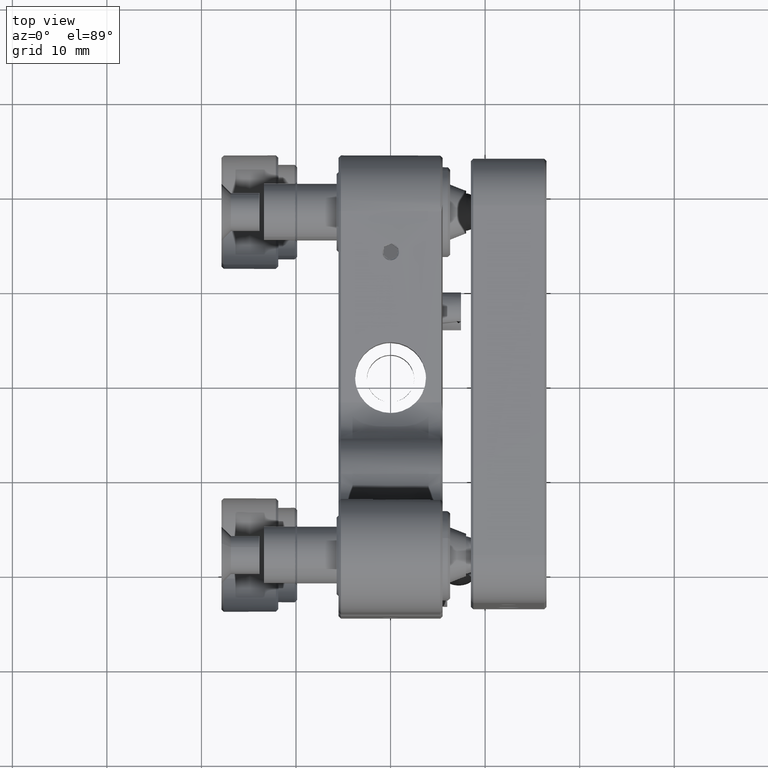
[diagram: clean part render]
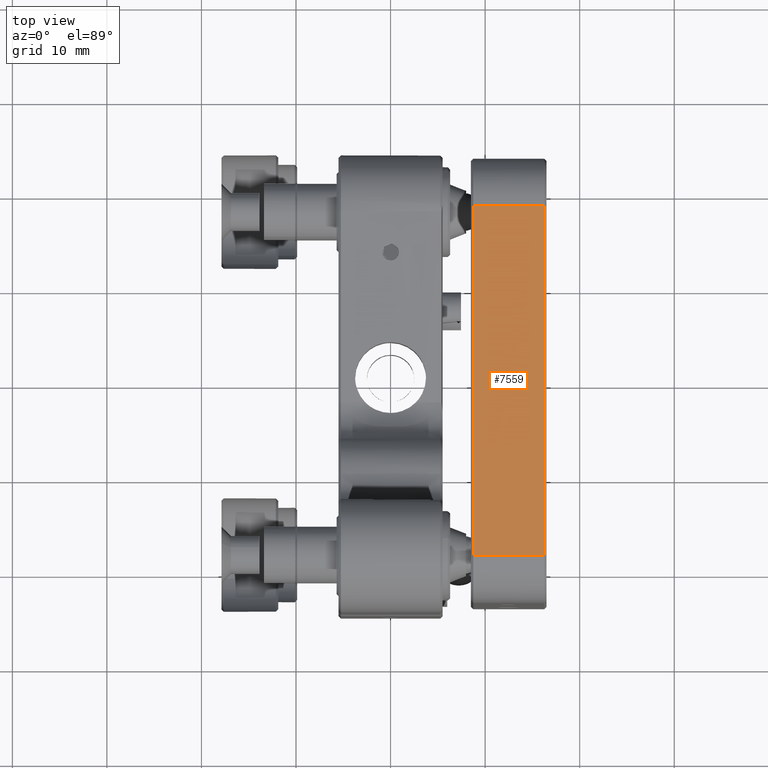
[diagram: same view with one face highlighted and labeled with its STEP entity id]
A machine part, top view. The second image highlights one B-rep face of the part: STEP entity #7559.
In plain terms, the highlighted face is a freeform B-spline surface patch.
Its self-contained STEP definition (entity closure, byte-faithful):
#558 = B_SPLINE_SURFACE_WITH_KNOTS ( 'NONE', 1, 1, ( 
 ( #37269, #47133 ),
 ( #13074, #60808 ) ),
 .UNSPECIFIED., .F., .F., .F.,
 ( 2, 2 ),
 ( 2, 2 ),
 ( -0.5011999999999889877, 8.501200000000160628 ),
 ( -45.70120000000000005, -1.298799999999978194 ),
 .UNSPECIFIED. ) ;
#1504 = EDGE_CURVE ( 'NONE', #47078, #16405, #48716, .T. ) ;
#2703 = ORIENTED_EDGE ( 'NONE', *, *, #1504, .F. ) ;
#5490 = CARTESIAN_POINT ( 'NONE',  ( 16.24606781186519910, -18.50000000000000000, 23.50000000000000000 ) ) ;
#6902 = CARTESIAN_POINT ( 'NONE',  ( 8.746067811865161801, 18.50000000000000000, 23.50000000000000000 ) ) ;
#6969 = EDGE_CURVE ( 'NONE', #16405, #35410, #58395, .T. ) ;
#7559 = ADVANCED_FACE ( 'NONE', ( #36961 ), #558, .T. ) ;
#8898 = EDGE_CURVE ( 'NONE', #58596, #47078, #26384, .T. ) ;
#13074 = CARTESIAN_POINT ( 'NONE',  ( 16.99726781186519986, -22.20120000000000005, 23.50000000000000000 ) ) ;
#15541 = ORIENTED_EDGE ( 'NONE', *, *, #8898, .F. ) ;
#16171 = CARTESIAN_POINT ( 'NONE',  ( 16.24606781186519910, 18.50000000000000000, 23.50000000000000000 ) ) ;
#16405 = VERTEX_POINT ( 'NONE', #51297 ) ;
#18902 = CARTESIAN_POINT ( 'NONE',  ( 16.24606781186519910, -18.50000000000000000, 23.50000000000000000 ) ) ;
#20286 = ORIENTED_EDGE ( 'NONE', *, *, #30306, .F. ) ;
#26384 = B_SPLINE_CURVE_WITH_KNOTS ( 'NONE', 1,
 ( #41250, #6902 ),
 .UNSPECIFIED., .F., .F.,
 ( 2, 2 ),
 ( 0.000000000000000000, 1.000000000000000000 ),
 .UNSPECIFIED. ) ;
#27052 = EDGE_LOOP ( 'NONE', ( #20286, #27258, #2703, #15541 ) ) ;
#27258 = ORIENTED_EDGE ( 'NONE', *, *, #6969, .F. ) ;
#29778 = CARTESIAN_POINT ( 'NONE',  ( 8.746067811865161801, 18.50000000000000000, 23.50000000000000000 ) ) ;
#30306 = EDGE_CURVE ( 'NONE', #35410, #58596, #54811, .T. ) ;
#31966 = CARTESIAN_POINT ( 'NONE',  ( 8.746067811865261277, -18.50000000000000000, 23.50000000000000000 ) ) ;
#33543 = CARTESIAN_POINT ( 'NONE',  ( 8.746067811865261277, -18.50000000000000000, 23.50000000000000000 ) ) ;
#35410 = VERTEX_POINT ( 'NONE', #41236 ) ;
#36961 = FACE_OUTER_BOUND ( 'NONE', #27052, .T. ) ;
#37269 = CARTESIAN_POINT ( 'NONE',  ( 7.994867811865050022, -22.20120000000000005, 23.50000000000000000 ) ) ;
#41236 = CARTESIAN_POINT ( 'NONE',  ( 16.24606781186519910, -18.50000000000000000, 23.50000000000000000 ) ) ;
#41250 = CARTESIAN_POINT ( 'NONE',  ( 8.746067811865261277, -18.50000000000000000, 23.50000000000000000 ) ) ;
#47078 = VERTEX_POINT ( 'NONE', #29778 ) ;
#47133 = CARTESIAN_POINT ( 'NONE',  ( 7.994867811865161045, 22.20120000000000005, 23.50000000000000000 ) ) ;
#48716 = B_SPLINE_CURVE_WITH_KNOTS ( 'NONE', 1,
 ( #55288, #16171 ),
 .UNSPECIFIED., .F., .F.,
 ( 2, 2 ),
 ( 0.000000000000000000, 1.000000000000000000 ),
 .UNSPECIFIED. ) ;
#49090 = CARTESIAN_POINT ( 'NONE',  ( 16.24606781186519910, 18.50000000000000000, 23.50000000000000000 ) ) ;
#51297 = CARTESIAN_POINT ( 'NONE',  ( 16.24606781186519910, 18.50000000000000000, 23.50000000000000000 ) ) ;
#54811 = B_SPLINE_CURVE_WITH_KNOTS ( 'NONE', 1,
 ( #18902, #33543 ),
 .UNSPECIFIED., .F., .F.,
 ( 2, 2 ),
 ( 0.000000000000000000, 1.000000000000000000 ),
 .UNSPECIFIED. ) ;
#55288 = CARTESIAN_POINT ( 'NONE',  ( 8.746067811865161801, 18.50000000000000000, 23.50000000000000000 ) ) ;
#58395 = B_SPLINE_CURVE_WITH_KNOTS ( 'NONE', 1,
 ( #49090, #5490 ),
 .UNSPECIFIED., .F., .F.,
 ( 2, 2 ),
 ( 0.000000000000000000, 1.000000000000000000 ),
 .UNSPECIFIED. ) ;
#58596 = VERTEX_POINT ( 'NONE', #31966 ) ;
#60808 = CARTESIAN_POINT ( 'NONE',  ( 16.99726781186529934, 22.20120000000000005, 23.50000000000000000 ) ) ;